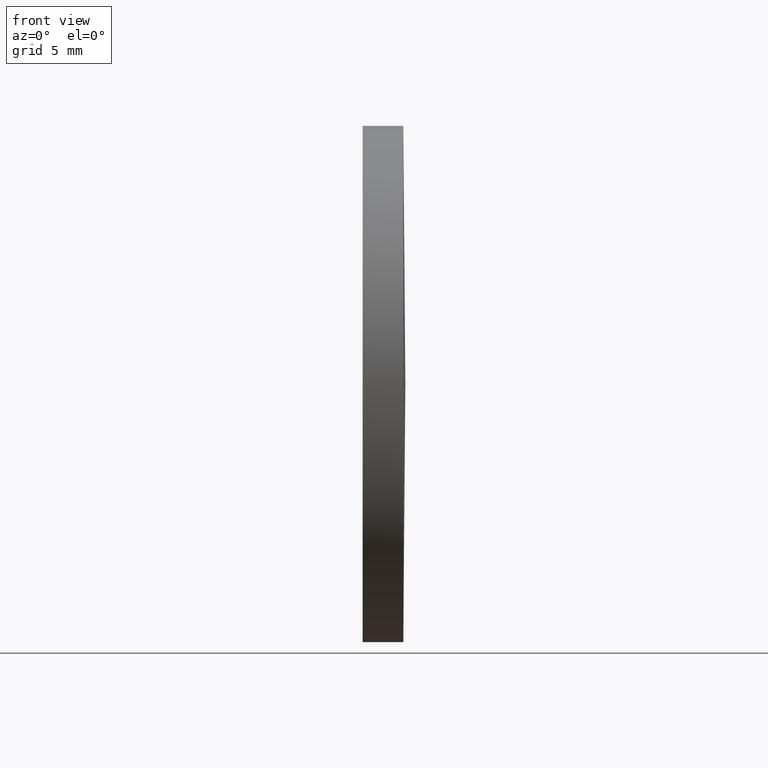
[diagram: clean part render]
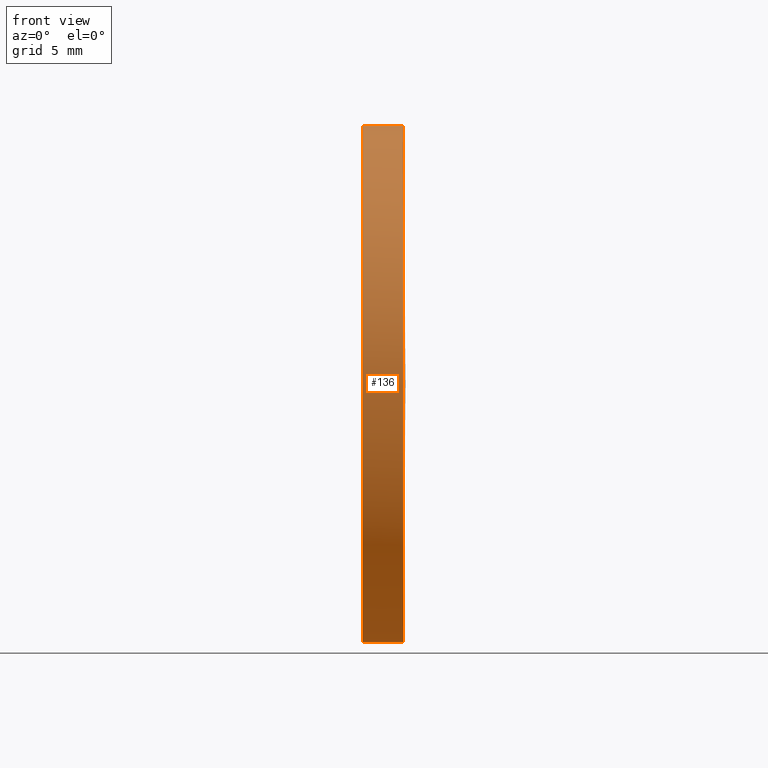
[diagram: same view with one face highlighted and labeled with its STEP entity id]
A machine part, front view. The second image highlights one B-rep face of the part: STEP entity #136.
In plain terms, the highlighted cylindrical surface (partial cylindrical patch) has radius 12.7 mm, axis along (-1, -0, -0).
Its self-contained STEP definition (entity closure, byte-faithful):
#1 = DIRECTION ( 'NONE',  ( -1.000000000000000000, -0.0000000000000000000, -0.0000000000000000000 ) ) ;
#2 = VERTEX_POINT ( 'NONE', #18 ) ;
#7 = ORIENTED_EDGE ( 'NONE', *, *, #51, .F. ) ;
#9 = LINE ( 'NONE', #113, #74 ) ;
#13 = DIRECTION ( 'NONE',  ( -1.000000000000000000, -0.0000000000000000000, -0.0000000000000000000 ) ) ;
#18 = CARTESIAN_POINT ( 'NONE',  ( 503.5484435145779700, 171.1402879795670300, -12.70000000000001700 ) ) ;
#19 = EDGE_LOOP ( 'NONE', ( #7, #80, #91, #108, #21 ) ) ;
#21 = ORIENTED_EDGE ( 'NONE', *, *, #79, .F. ) ;
#32 = DIRECTION ( 'NONE',  ( -1.000000000000000000, -0.0000000000000000000, -0.0000000000000000000 ) ) ;
#34 = CYLINDRICAL_SURFACE ( 'NONE', #181, 12.70000000000001700 ) ;
#46 = CARTESIAN_POINT ( 'NONE',  ( 505.5484435145779700, 158.4402879795674700, 0.0000000000000000000 ) ) ;
#47 = VERTEX_POINT ( 'NONE', #46 ) ;
#51 = EDGE_CURVE ( 'NONE', #150, #2, #9, .T. ) ;
#55 = CARTESIAN_POINT ( 'NONE',  ( 505.5484435145779700, 171.1402879795670300, 12.70000000000001700 ) ) ;
#56 = CARTESIAN_POINT ( 'NONE',  ( 505.5484435145779700, 171.1402879795670300, -12.70000000000001700 ) ) ;
#58 = EDGE_CURVE ( 'NONE', #47, #70, #161, .T. ) ;
#59 = VECTOR ( 'NONE', #66, 1000.000000000000000 ) ;
#66 = DIRECTION ( 'NONE',  ( -1.000000000000000000, -0.0000000000000000000, -0.0000000000000000000 ) ) ;
#70 = VERTEX_POINT ( 'NONE', #55 ) ;
#74 = VECTOR ( 'NONE', #13, 1000.000000000000000 ) ;
#79 = EDGE_CURVE ( 'NONE', #2, #145, #184, .T. ) ;
#80 = ORIENTED_EDGE ( 'NONE', *, *, #105, .T. ) ;
#82 = DIRECTION ( 'NONE',  ( -1.000000000000000000, -0.0000000000000000000, -0.0000000000000000000 ) ) ;
#85 = AXIS2_PLACEMENT_3D ( 'NONE', #140, #82, #143 ) ;
#87 = EDGE_CURVE ( 'NONE', #70, #145, #96, .T. ) ;
#91 = ORIENTED_EDGE ( 'NONE', *, *, #58, .T. ) ;
#95 = AXIS2_PLACEMENT_3D ( 'NONE', #146, #159, #144 ) ;
#96 = LINE ( 'NONE', #138, #59 ) ;
#100 = CARTESIAN_POINT ( 'NONE',  ( 497.8102254789016000, 171.1402879795670300, 0.0000000000000000000 ) ) ;
#105 = EDGE_CURVE ( 'NONE', #150, #47, #135, .T. ) ;
#108 = ORIENTED_EDGE ( 'NONE', *, *, #87, .T. ) ;
#113 = CARTESIAN_POINT ( 'NONE',  ( 497.8102254789016000, 171.1402879795670300, -12.70000000000001700 ) ) ;
#114 = AXIS2_PLACEMENT_3D ( 'NONE', #117, #32, #176 ) ;
#117 = CARTESIAN_POINT ( 'NONE',  ( 503.5484435145779700, 171.1402879795670300, 0.0000000000000000000 ) ) ;
#128 = FACE_OUTER_BOUND ( 'NONE', #19, .T. ) ;
#135 = CIRCLE ( 'NONE', #95, 12.70000000000001700 ) ;
#136 = ADVANCED_FACE ( 'NONE', ( #128 ), #34, .T. ) ;
#138 = CARTESIAN_POINT ( 'NONE',  ( 497.8102254789016000, 171.1402879795670300, 12.70000000000001700 ) ) ;
#140 = CARTESIAN_POINT ( 'NONE',  ( 505.5484435145779700, 171.1402879795670300, 0.0000000000000000000 ) ) ;
#143 = DIRECTION ( 'NONE',  ( 0.0000000000000000000, 0.0000000000000000000, 1.000000000000000000 ) ) ;
#144 = DIRECTION ( 'NONE',  ( 0.0000000000000000000, 0.0000000000000000000, 1.000000000000000000 ) ) ;
#145 = VERTEX_POINT ( 'NONE', #174 ) ;
#146 = CARTESIAN_POINT ( 'NONE',  ( 505.5484435145779700, 171.1402879795670300, 0.0000000000000000000 ) ) ;
#150 = VERTEX_POINT ( 'NONE', #56 ) ;
#157 = DIRECTION ( 'NONE',  ( 0.0000000000000000000, 0.0000000000000000000, 1.000000000000000000 ) ) ;
#159 = DIRECTION ( 'NONE',  ( -1.000000000000000000, -0.0000000000000000000, -0.0000000000000000000 ) ) ;
#161 = CIRCLE ( 'NONE', #85, 12.70000000000001700 ) ;
#174 = CARTESIAN_POINT ( 'NONE',  ( 503.5484435145779700, 171.1402879795670300, 12.70000000000001700 ) ) ;
#176 = DIRECTION ( 'NONE',  ( 0.0000000000000000000, 0.0000000000000000000, 1.000000000000000000 ) ) ;
#181 = AXIS2_PLACEMENT_3D ( 'NONE', #100, #1, #157 ) ;
#184 = CIRCLE ( 'NONE', #114, 12.70000000000001700 ) ;